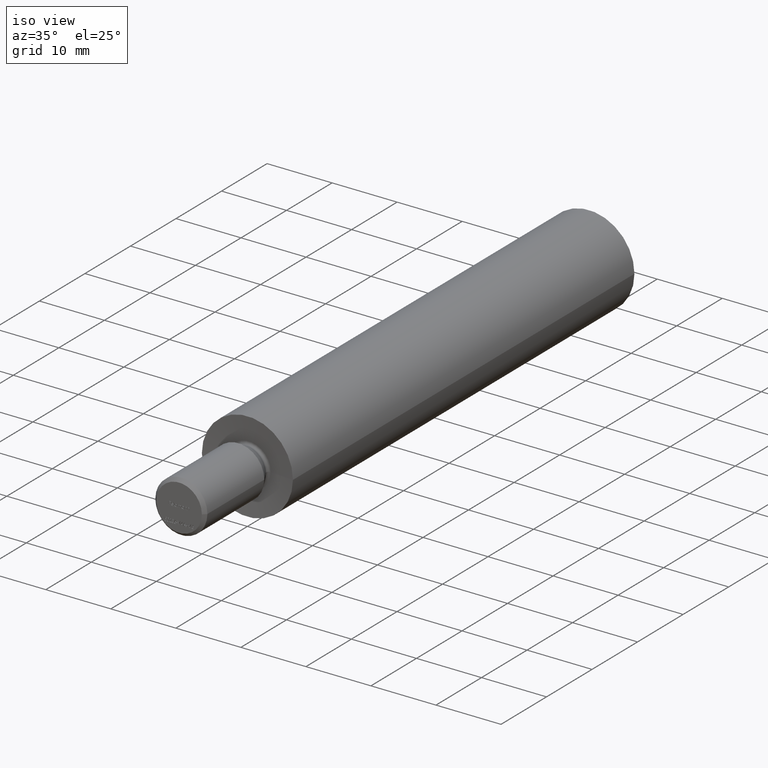
[diagram: clean part render]
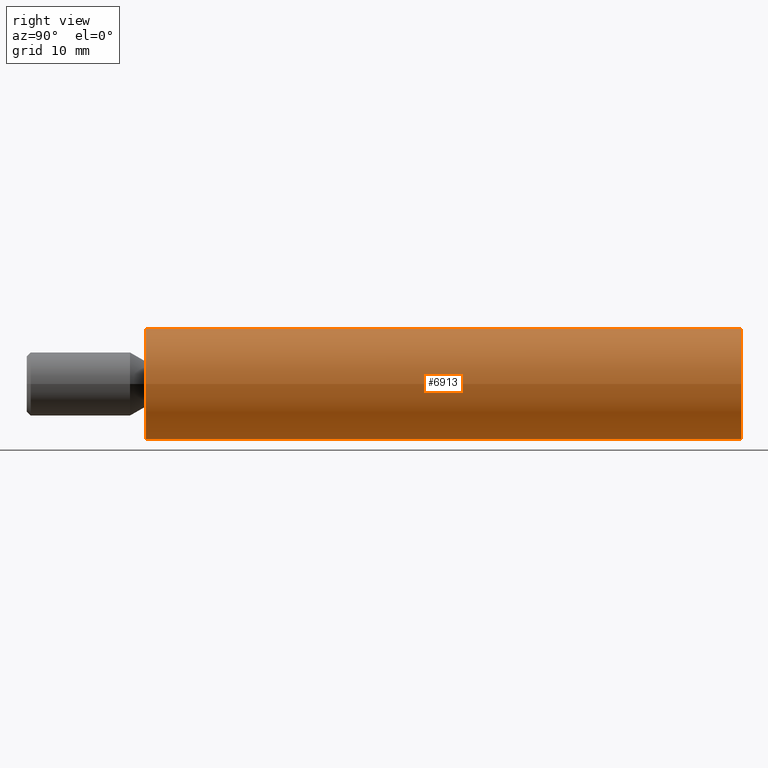
[diagram: tour spotlight — one face highlighted and labeled with its STEP entity id]
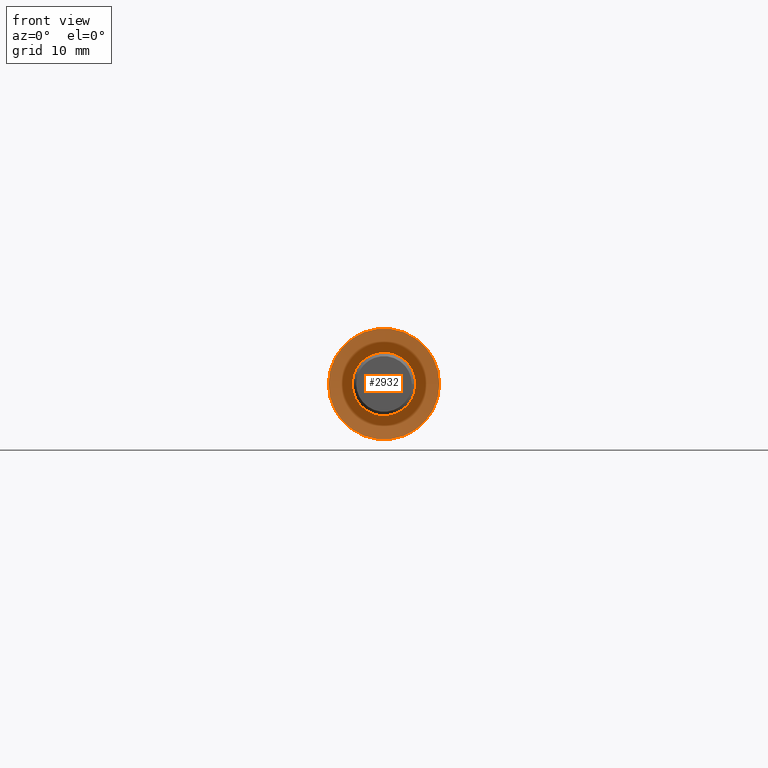
[diagram: tour spotlight — one face highlighted and labeled with its STEP entity id]
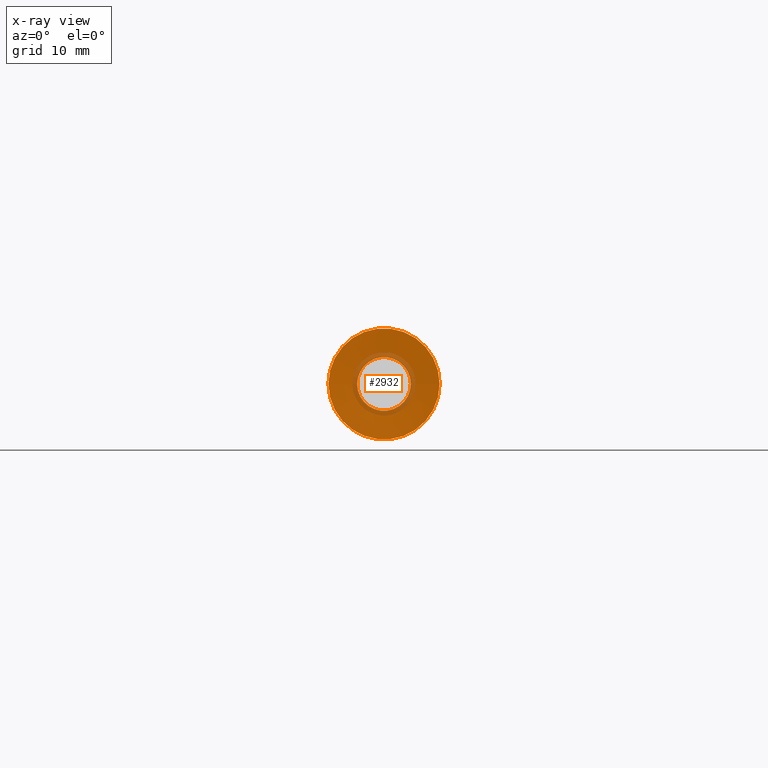
[diagram: x-ray of the same camera — body ghosted, this tour face saturated]
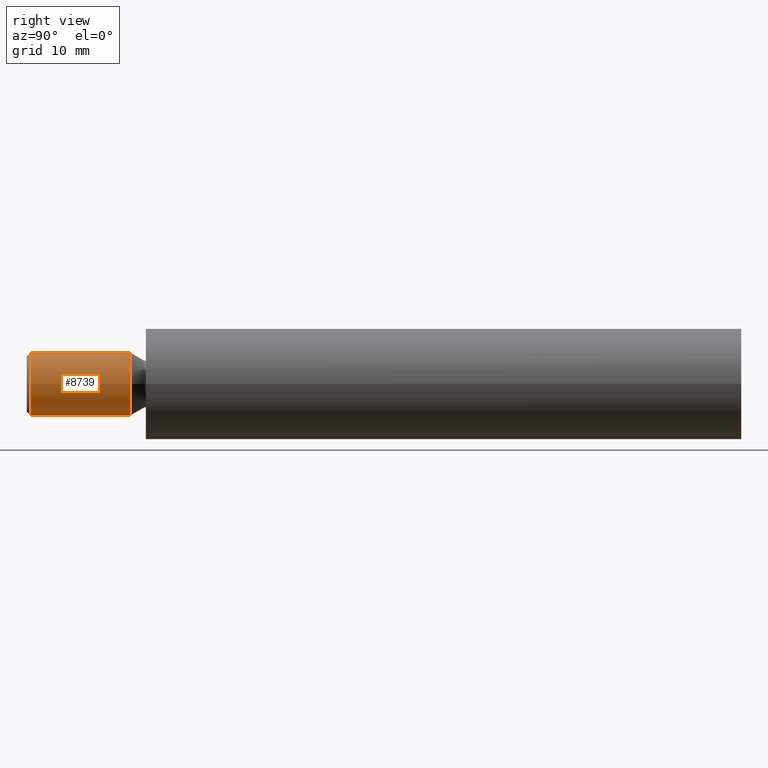
[diagram: tour spotlight — one face highlighted and labeled with its STEP entity id]
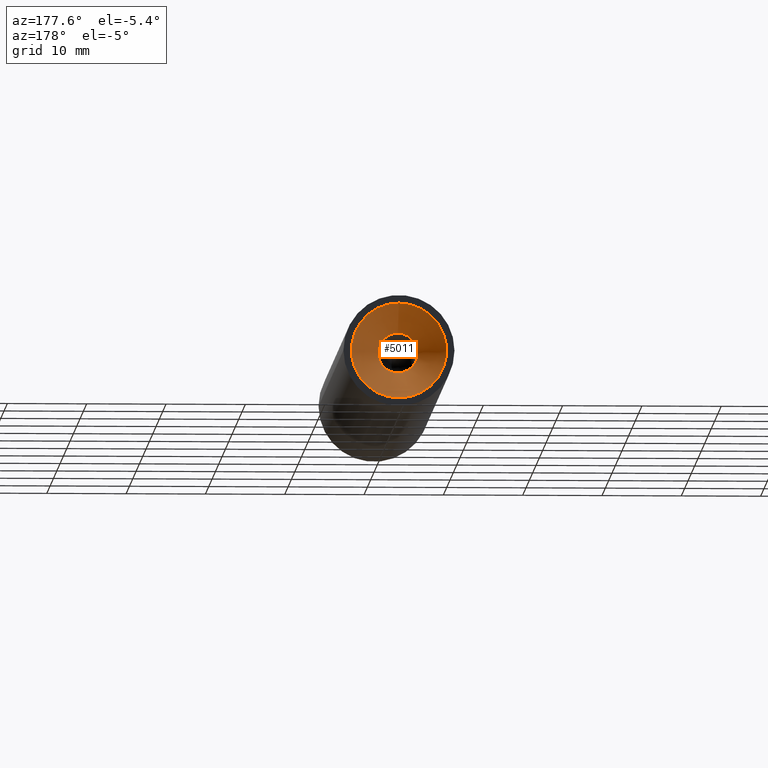
[diagram: tour spotlight — one face highlighted and labeled with its STEP entity id]
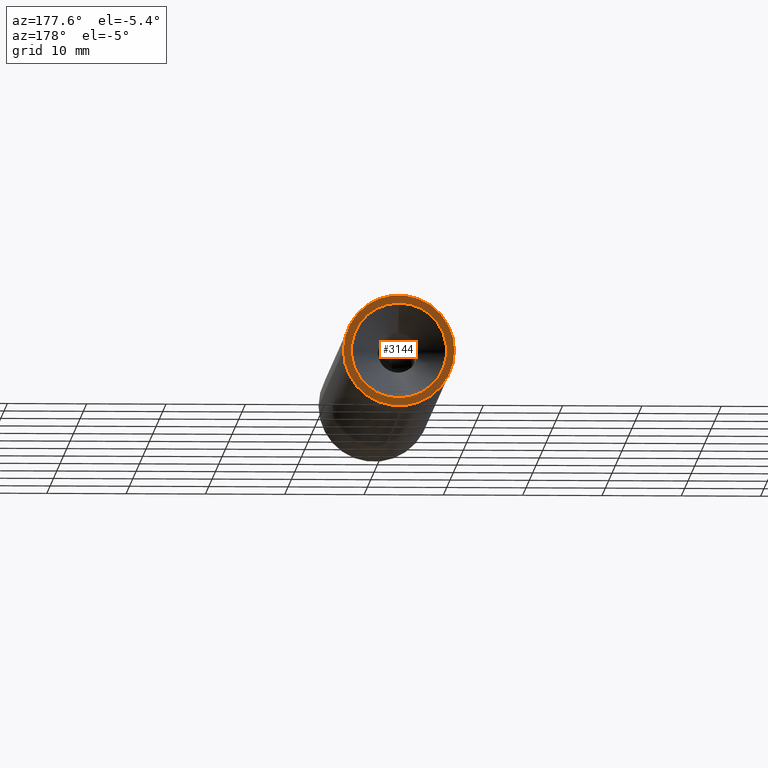
[diagram: tour spotlight — one face highlighted and labeled with its STEP entity id]
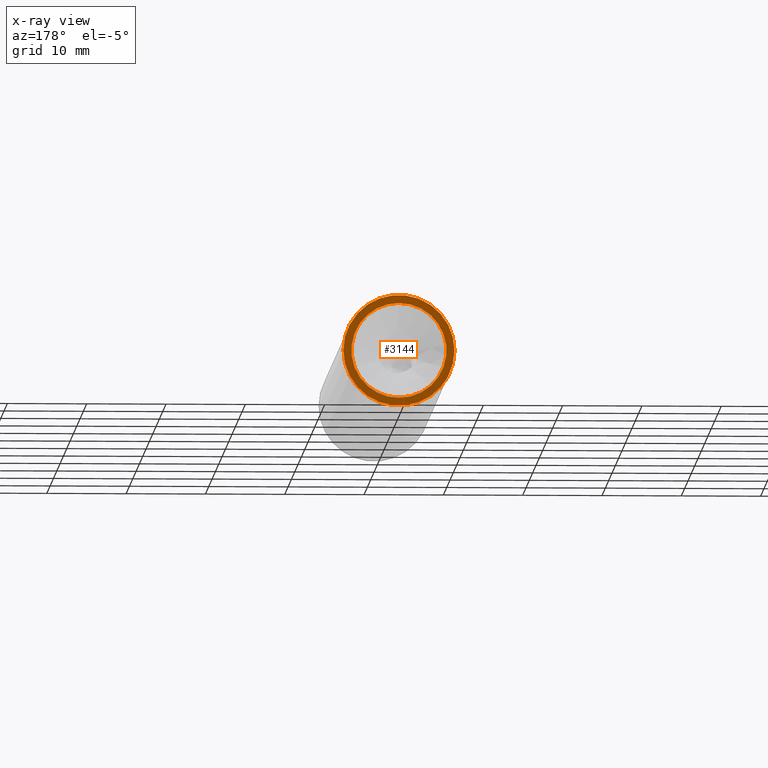
[diagram: x-ray of the same camera — body ghosted, this tour face saturated]
A machine part: a face-by-face anatomy tour. The part has 269 B-rep faces; the first image is the clean iso view, then the 5 largest visible faces are spotlighted one at a time (largest first), each with its STEP entity span.

Face 1 — right view, entity #6913. In plain terms, the highlighted cylindrical surface (bore or boss wall) has radius 7 mm, axis along (0, -1, -0).
Definition (entity closure, byte-faithful):
#20 = VERTEX_POINT ( 'NONE', #4952 ) ;
#116 = AXIS2_PLACEMENT_3D ( 'NONE', #13311, #10110, #10200 ) ;
#318 = DIRECTION ( 'NONE',  ( 1.000000000000000000, 0.000000000000000000, 0.000000000000000000 ) ) ;
#738 = CARTESIAN_POINT ( 'NONE',  ( 7.000000000000005329, 1.497945512301184688E-32, 0.000000000000000000 ) ) ;
#1755 = EDGE_LOOP ( 'NONE', ( #10395 ) ) ;
#2929 = AXIS2_PLACEMENT_3D ( 'NONE', #7515, #3088, #4332 ) ;
#3088 = DIRECTION ( 'NONE',  ( 2.139922160430262325E-33, -1.000000000000000000, -0.000000000000000000 ) ) ;
#3542 = DIRECTION ( 'NONE',  ( 2.139922160430262325E-33, -1.000000000000000000, -0.000000000000000000 ) ) ;
#3995 = CYLINDRICAL_SURFACE ( 'NONE', #2929, 7.000000000000000888 ) ;
#4332 = DIRECTION ( 'NONE',  ( 1.000000000000000000, 0.000000000000000000, 0.000000000000000000 ) ) ;
#4952 = CARTESIAN_POINT ( 'NONE',  ( 6.999999999999996447, 75.00000000000000000, 0.000000000000000000 ) ) ;
#6636 = EDGE_LOOP ( 'NONE', ( #11323 ) ) ;
#6913 = ADVANCED_FACE ( 'NONE', ( #13106, #10321 ), #3995, .T. ) ;
#7011 = CIRCLE ( 'NONE', #11092, 6.999999999999996447 ) ;
#7471 = VERTEX_POINT ( 'NONE', #738 ) ;
#7515 = CARTESIAN_POINT ( 'NONE',  ( 1.925929944387235853E-31, -15.00000000000000000, 0.000000000000000000 ) ) ;
#8838 = CARTESIAN_POINT ( 'NONE',  ( 0.000000000000000000, 75.00000000000000000, 0.000000000000000000 ) ) ;
#10110 = DIRECTION ( 'NONE',  ( 2.139922160430262325E-33, -1.000000000000000000, -0.000000000000000000 ) ) ;
#10143 = EDGE_CURVE ( 'NONE', #7471, #7471, #10426, .T. ) ;
#10200 = DIRECTION ( 'NONE',  ( 1.000000000000000000, 2.139922160430262325E-33, 0.000000000000000000 ) ) ;
#10321 = FACE_OUTER_BOUND ( 'NONE', #1755, .T. ) ;
#10395 = ORIENTED_EDGE ( 'NONE', *, *, #10143, .F. ) ;
#10426 = CIRCLE ( 'NONE', #116, 7.000000000000005329 ) ;
#11092 = AXIS2_PLACEMENT_3D ( 'NONE', #8838, #3542, #318 ) ;
#11323 = ORIENTED_EDGE ( 'NONE', *, *, #12694, .T. ) ;
#12694 = EDGE_CURVE ( 'NONE', #20, #20, #7011, .T. ) ;
#13106 = FACE_OUTER_BOUND ( 'NONE', #6636, .T. ) ;
#13311 = CARTESIAN_POINT ( 'NONE',  ( 1.604941620322696398E-31, 0.000000000000000000, 0.000000000000000000 ) ) ;

Face 2 — front view, entity #2932. An x-ray twin of the same camera follows (body ghosted, this face saturated) — the face is partly hidden behind the body. In plain terms, the highlighted conical surface has half-angle 85 deg.
Definition (entity closure, byte-faithful):
#116 = AXIS2_PLACEMENT_3D ( 'NONE', #13311, #10110, #10200 ) ;
#518 = CARTESIAN_POINT ( 'NONE',  ( 1.598150938768347114E-31, 0.3173331105176275257, 0.000000000000000000 ) ) ;
#738 = CARTESIAN_POINT ( 'NONE',  ( 7.000000000000005329, 1.497945512301184688E-32, 0.000000000000000000 ) ) ;
#831 = DIRECTION ( 'NONE',  ( 1.000000000000000000, 0.000000000000000000, 0.000000000000000000 ) ) ;
#1553 = FACE_OUTER_BOUND ( 'NONE', #10456, .T. ) ;
#1813 = CIRCLE ( 'NONE', #8518, 3.372865949385575046 ) ;
#2802 = VERTEX_POINT ( 'NONE', #10182 ) ;
#2842 = FACE_BOUND ( 'NONE', #6348, .T. ) ;
#2932 = ADVANCED_FACE ( 'NONE', ( #1553, #2842 ), #5326, .F. ) ;
#3808 = CARTESIAN_POINT ( 'NONE',  ( 1.598150938768347114E-31, 0.3173331105176275257, 0.000000000000000000 ) ) ;
#5326 = CONICAL_SURFACE ( 'NONE', #13219, 3.372865949385575046, 1.483529864195180181 ) ;
#6071 = DIRECTION ( 'NONE',  ( 2.139922160430262325E-33, -1.000000000000000000, -0.000000000000000000 ) ) ;
#6296 = ORIENTED_EDGE ( 'NONE', *, *, #9608, .F. ) ;
#6348 = EDGE_LOOP ( 'NONE', ( #6296 ) ) ;
#7471 = VERTEX_POINT ( 'NONE', #738 ) ;
#8000 = DIRECTION ( 'NONE',  ( 2.139922160430262325E-33, -1.000000000000000000, -0.000000000000000000 ) ) ;
#8518 = AXIS2_PLACEMENT_3D ( 'NONE', #3808, #6071, #831 ) ;
#8996 = ORIENTED_EDGE ( 'NONE', *, *, #10143, .T. ) ;
#9608 = EDGE_CURVE ( 'NONE', #2802, #2802, #1813, .T. ) ;
#10110 = DIRECTION ( 'NONE',  ( 2.139922160430262325E-33, -1.000000000000000000, -0.000000000000000000 ) ) ;
#10143 = EDGE_CURVE ( 'NONE', #7471, #7471, #10426, .T. ) ;
#10182 = CARTESIAN_POINT ( 'NONE',  ( 3.372865949385575046, 0.3173331105176275257, 0.000000000000000000 ) ) ;
#10200 = DIRECTION ( 'NONE',  ( 1.000000000000000000, 2.139922160430262325E-33, 0.000000000000000000 ) ) ;
#10426 = CIRCLE ( 'NONE', #116, 7.000000000000005329 ) ;
#10456 = EDGE_LOOP ( 'NONE', ( #8996 ) ) ;
#13219 = AXIS2_PLACEMENT_3D ( 'NONE', #518, #8000, #13301 ) ;
#13301 = DIRECTION ( 'NONE',  ( 1.000000000000000000, 0.000000000000000000, 0.000000000000000000 ) ) ;
#13311 = CARTESIAN_POINT ( 'NONE',  ( 1.604941620322696398E-31, 0.000000000000000000, 0.000000000000000000 ) ) ;

Face 3 — right view, entity #8739. In plain terms, the highlighted cylindrical surface (bore or boss wall) has radius 4 mm, axis along (0, -1, -0).
Definition (entity closure, byte-faithful):
#1648 = DIRECTION ( 'NONE',  ( 1.000000000000000000, 0.000000000000000000, 0.000000000000000000 ) ) ;
#1879 = DIRECTION ( 'NONE',  ( 2.139922160430262325E-33, -1.000000000000000000, -0.000000000000000000 ) ) ;
#2266 = ORIENTED_EDGE ( 'NONE', *, *, #10916, .T. ) ;
#2781 = FACE_OUTER_BOUND ( 'NONE', #10982, .T. ) ;
#2879 = CARTESIAN_POINT ( 'NONE',  ( 1.647740063531301761E-31, -2.000000000000000000, 0.000000000000000000 ) ) ;
#3155 = CIRCLE ( 'NONE', #8006, 4.000000000000000888 ) ;
#4108 = CYLINDRICAL_SURFACE ( 'NONE', #13314, 4.000000000000000888 ) ;
#4933 = AXIS2_PLACEMENT_3D ( 'NONE', #2879, #1879, #8125 ) ;
#5983 = DIRECTION ( 'NONE',  ( 1.000000000000000000, 0.000000000000000000, 0.000000000000000000 ) ) ;
#6921 = DIRECTION ( 'NONE',  ( 2.139922160430262325E-33, -1.000000000000000000, -0.000000000000000000 ) ) ;
#6922 = CARTESIAN_POINT ( 'NONE',  ( 4.000000000000000000, -2.000000000000000000, 0.000000000000000000 ) ) ;
#7979 = DIRECTION ( 'NONE',  ( -2.139922160430267457E-33, 1.000000000000000000, 0.000000000000000000 ) ) ;
#8006 = AXIS2_PLACEMENT_3D ( 'NONE', #12194, #7979, #1648 ) ;
#8125 = DIRECTION ( 'NONE',  ( 1.000000000000000000, 0.000000000000000000, 0.000000000000000000 ) ) ;
#8172 = CARTESIAN_POINT ( 'NONE',  ( 1.925929944387235853E-31, -15.00000000000000000, 0.000000000000000000 ) ) ;
#8458 = VERTEX_POINT ( 'NONE', #6922 ) ;
#8739 = ADVANCED_FACE ( 'NONE', ( #11253, #2781 ), #4108, .T. ) ;
#9543 = EDGE_CURVE ( 'NONE', #8458, #8458, #11105, .T. ) ;
#10128 = EDGE_LOOP ( 'NONE', ( #2266 ) ) ;
#10411 = ORIENTED_EDGE ( 'NONE', *, *, #9543, .T. ) ;
#10916 = EDGE_CURVE ( 'NONE', #13551, #13551, #3155, .T. ) ;
#10982 = EDGE_LOOP ( 'NONE', ( #10411 ) ) ;
#11105 = CIRCLE ( 'NONE', #4933, 4.000000000000000000 ) ;
#11236 = CARTESIAN_POINT ( 'NONE',  ( 4.000000000000000888, -14.50000000000000178, 0.000000000000000000 ) ) ;
#11253 = FACE_OUTER_BOUND ( 'NONE', #10128, .T. ) ;
#12194 = CARTESIAN_POINT ( 'NONE',  ( 1.915230333585084567E-31, -14.50000000000000178, 0.000000000000000000 ) ) ;
#13314 = AXIS2_PLACEMENT_3D ( 'NONE', #8172, #6921, #5983 ) ;
#13551 = VERTEX_POINT ( 'NONE', #11236 ) ;

Face 4 — auxiliary view, entity #5011. In plain terms, the highlighted conical surface has half-angle 45 deg.
Definition (entity closure, byte-faithful):
#608 = CARTESIAN_POINT ( 'NONE',  ( -1.604941620322696617E-31, 75.00000000000000000, 6.000000000000000000 ) ) ;
#999 = FACE_BOUND ( 'NONE', #11274, .T. ) ;
#1699 = AXIS2_PLACEMENT_3D ( 'NONE', #10884, #12995, #13170 ) ;
#1827 = DIRECTION ( 'NONE',  ( -0.000000000000000000, 1.000000000000000000, -0.000000000000000000 ) ) ;
#2773 = CARTESIAN_POINT ( 'NONE',  ( -1.604941620322696617E-31, 75.00000000000000000, 0.000000000000000000 ) ) ;
#3301 = VERTEX_POINT ( 'NONE', #7822 ) ;
#4825 = EDGE_CURVE ( 'NONE', #3301, #3301, #12743, .T. ) ;
#4927 = FACE_OUTER_BOUND ( 'NONE', #11427, .T. ) ;
#5011 = ADVANCED_FACE ( 'NONE', ( #999, #4927 ), #13375, .F. ) ;
#5519 = ORIENTED_EDGE ( 'NONE', *, *, #4825, .T. ) ;
#7105 = CARTESIAN_POINT ( 'NONE',  ( -1.604941620322696617E-31, 75.00000000000000000, 0.000000000000000000 ) ) ;
#7666 = DIRECTION ( 'NONE',  ( 0.000000000000000000, 0.000000000000000000, 1.000000000000000000 ) ) ;
#7822 = CARTESIAN_POINT ( 'NONE',  ( -1.604941620322696617E-31, 71.50000000000000000, 2.499999999999996003 ) ) ;
#7916 = AXIS2_PLACEMENT_3D ( 'NONE', #2773, #10213, #11311 ) ;
#7992 = AXIS2_PLACEMENT_3D ( 'NONE', #7105, #1827, #7666 ) ;
#9976 = CIRCLE ( 'NONE', #7916, 6.000000000000000000 ) ;
#10213 = DIRECTION ( 'NONE',  ( -0.000000000000000000, 1.000000000000000000, -0.000000000000000000 ) ) ;
#10241 = ORIENTED_EDGE ( 'NONE', *, *, #10977, .T. ) ;
#10775 = VERTEX_POINT ( 'NONE', #608 ) ;
#10884 = CARTESIAN_POINT ( 'NONE',  ( -1.604941620322696617E-31, 71.50000000000000000, 0.000000000000000000 ) ) ;
#10977 = EDGE_CURVE ( 'NONE', #10775, #10775, #9976, .T. ) ;
#11274 = EDGE_LOOP ( 'NONE', ( #5519 ) ) ;
#11311 = DIRECTION ( 'NONE',  ( 0.000000000000000000, 0.000000000000000000, 1.000000000000000000 ) ) ;
#11427 = EDGE_LOOP ( 'NONE', ( #10241 ) ) ;
#12743 = CIRCLE ( 'NONE', #1699, 2.499999999999996003 ) ;
#12995 = DIRECTION ( 'NONE',  ( 0.000000000000000000, -1.000000000000000000, 0.000000000000000000 ) ) ;
#13170 = DIRECTION ( 'NONE',  ( 0.000000000000000000, 0.000000000000000000, 1.000000000000000000 ) ) ;
#13375 = CONICAL_SURFACE ( 'NONE', #7992, 6.000000000000000000, 0.7853981633974480570 ) ;

Face 5 — auxiliary view, entity #3144. An x-ray twin of the same camera follows (body ghosted, this face saturated) — the face is partly hidden behind the body. In plain terms, the highlighted planar face has unit normal (-0, 1, 0).
Definition (entity closure, byte-faithful):
#20 = VERTEX_POINT ( 'NONE', #4952 ) ;
#318 = DIRECTION ( 'NONE',  ( 1.000000000000000000, 0.000000000000000000, 0.000000000000000000 ) ) ;
#608 = CARTESIAN_POINT ( 'NONE',  ( -1.604941620322696617E-31, 75.00000000000000000, 6.000000000000000000 ) ) ;
#1803 = AXIS2_PLACEMENT_3D ( 'NONE', #6282, #8488, #7375 ) ;
#2773 = CARTESIAN_POINT ( 'NONE',  ( -1.604941620322696617E-31, 75.00000000000000000, 0.000000000000000000 ) ) ;
#3144 = ADVANCED_FACE ( 'NONE', ( #7170, #5995 ), #3282, .T. ) ;
#3282 = PLANE ( 'NONE',  #1803 ) ;
#3542 = DIRECTION ( 'NONE',  ( 2.139922160430262325E-33, -1.000000000000000000, -0.000000000000000000 ) ) ;
#4952 = CARTESIAN_POINT ( 'NONE',  ( 6.999999999999996447, 75.00000000000000000, 0.000000000000000000 ) ) ;
#5096 = EDGE_LOOP ( 'NONE', ( #9829 ) ) ;
#5995 = FACE_OUTER_BOUND ( 'NONE', #5096, .T. ) ;
#6056 = EDGE_LOOP ( 'NONE', ( #6088 ) ) ;
#6088 = ORIENTED_EDGE ( 'NONE', *, *, #10977, .F. ) ;
#6282 = CARTESIAN_POINT ( 'NONE',  ( 1.602743398445181739E-65, 75.00000000000000000, 0.000000000000000000 ) ) ;
#7011 = CIRCLE ( 'NONE', #11092, 6.999999999999996447 ) ;
#7170 = FACE_BOUND ( 'NONE', #6056, .T. ) ;
#7375 = DIRECTION ( 'NONE',  ( -1.000000000000000000, -2.139922160430262325E-33, 0.000000000000000000 ) ) ;
#7916 = AXIS2_PLACEMENT_3D ( 'NONE', #2773, #10213, #11311 ) ;
#8488 = DIRECTION ( 'NONE',  ( -2.139922160430262325E-33, 1.000000000000000000, 0.000000000000000000 ) ) ;
#8838 = CARTESIAN_POINT ( 'NONE',  ( 0.000000000000000000, 75.00000000000000000, 0.000000000000000000 ) ) ;
#9829 = ORIENTED_EDGE ( 'NONE', *, *, #12694, .F. ) ;
#9976 = CIRCLE ( 'NONE', #7916, 6.000000000000000000 ) ;
#10213 = DIRECTION ( 'NONE',  ( -0.000000000000000000, 1.000000000000000000, -0.000000000000000000 ) ) ;
#10775 = VERTEX_POINT ( 'NONE', #608 ) ;
#10977 = EDGE_CURVE ( 'NONE', #10775, #10775, #9976, .T. ) ;
#11092 = AXIS2_PLACEMENT_3D ( 'NONE', #8838, #3542, #318 ) ;
#11311 = DIRECTION ( 'NONE',  ( 0.000000000000000000, 0.000000000000000000, 1.000000000000000000 ) ) ;
#12694 = EDGE_CURVE ( 'NONE', #20, #20, #7011, .T. ) ;